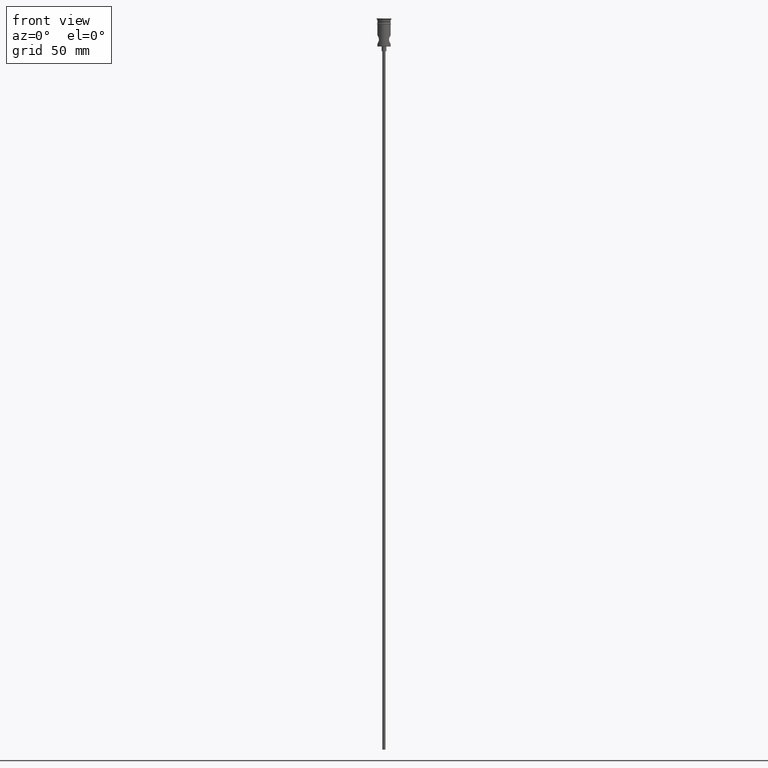
[diagram: clean part render]
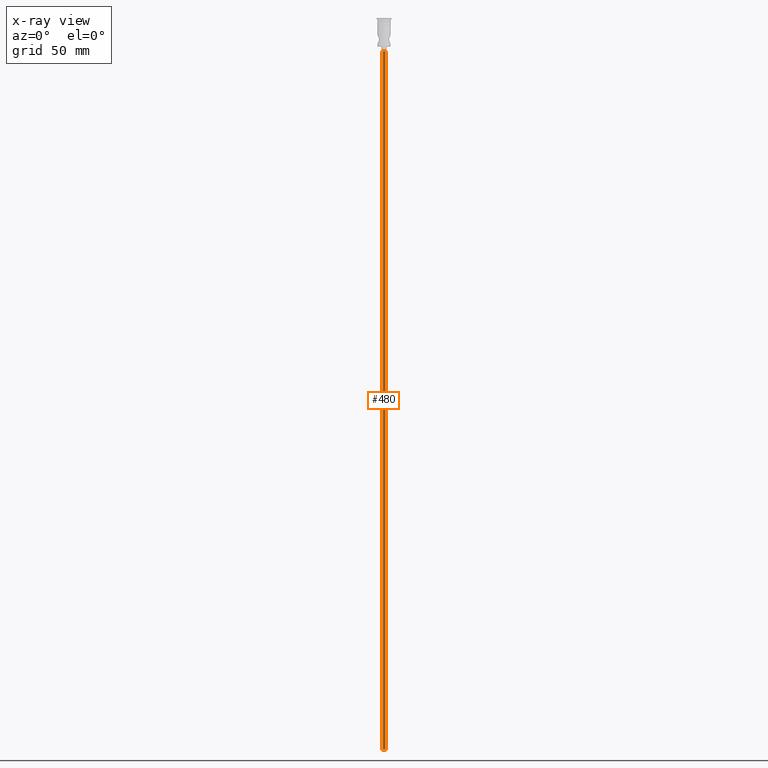
[diagram: x-ray — body ghosted, one internal face saturated and labeled with its STEP entity id]
A machine part, front view, then the same camera in x-ray: the body is ghosted and one INTERNAL B-rep face — a face not visible from any outside direction — is saturated and labeled: STEP entity #480.
In plain terms, the highlighted cylindrical surface (edge-blend (fillet) strip) has radius 1 mm, axis along (-0, -0, 1).
Its self-contained STEP definition (entity closure, byte-faithful):
#14 = CARTESIAN_POINT ( 'NONE',  ( -0.9999999999999997780, 1.224646799147352961E-16, -468.0000000000000000 ) ) ;
#22 = DIRECTION ( 'NONE',  ( -0.000000000000000000, -0.000000000000000000, 1.000000000000000000 ) ) ;
#40 = CARTESIAN_POINT ( 'NONE',  ( 0.000000000000000000, 0.000000000000000000, -468.0000000000000000 ) ) ;
#62 = VERTEX_POINT ( 'NONE', #701 ) ;
#82 = EDGE_CURVE ( 'NONE', #200, #380, #432, .T. ) ;
#122 = CARTESIAN_POINT ( 'NONE',  ( 0.000000000000000000, 0.000000000000000000, -468.0000000000000000 ) ) ;
#136 = CIRCLE ( 'NONE', #221, 0.9999999999999997780 ) ;
#147 = DIRECTION ( 'NONE',  ( 1.000000000000000000, 0.000000000000000000, 0.000000000000000000 ) ) ;
#200 = VERTEX_POINT ( 'NONE', #482 ) ;
#211 = ORIENTED_EDGE ( 'NONE', *, *, #1084, .T. ) ;
#221 = AXIS2_PLACEMENT_3D ( 'NONE', #230, #1031, #1116 ) ;
#230 = CARTESIAN_POINT ( 'NONE',  ( 0.000000000000000000, 0.000000000000000000, -20.99999999999999645 ) ) ;
#233 = CARTESIAN_POINT ( 'NONE',  ( 0.9999999999999997780, 0.000000000000000000, -468.0000000000000000 ) ) ;
#308 = ORIENTED_EDGE ( 'NONE', *, *, #82, .F. ) ;
#324 = LINE ( 'NONE', #1130, #610 ) ;
#380 = VERTEX_POINT ( 'NONE', #233 ) ;
#386 = AXIS2_PLACEMENT_3D ( 'NONE', #122, #22, #147 ) ;
#432 = CIRCLE ( 'NONE', #1000, 0.9999999999999997780 ) ;
#463 = DIRECTION ( 'NONE',  ( -0.000000000000000000, -0.000000000000000000, 1.000000000000000000 ) ) ;
#480 = ADVANCED_FACE ( 'NONE', ( #820 ), #1128, .T. ) ;
#482 = CARTESIAN_POINT ( 'NONE',  ( -0.9999999999999997780, 1.224646799147352961E-16, -468.0000000000000000 ) ) ;
#483 = DIRECTION ( 'NONE',  ( 0.000000000000000000, 0.000000000000000000, -1.000000000000000000 ) ) ;
#507 = ORIENTED_EDGE ( 'NONE', *, *, #1056, .F. ) ;
#593 = CARTESIAN_POINT ( 'NONE',  ( -0.9999999999999997780, 1.224646799147352961E-16, -20.99999999999999645 ) ) ;
#610 = VECTOR ( 'NONE', #674, 1000.000000000000000 ) ;
#655 = VERTEX_POINT ( 'NONE', #593 ) ;
#661 = EDGE_LOOP ( 'NONE', ( #308, #1051, #211, #507 ) ) ;
#674 = DIRECTION ( 'NONE',  ( -0.000000000000000000, -0.000000000000000000, 1.000000000000000000 ) ) ;
#686 = LINE ( 'NONE', #14, #1243 ) ;
#701 = CARTESIAN_POINT ( 'NONE',  ( 0.9999999999999997780, 0.000000000000000000, -20.99999999999999645 ) ) ;
#753 = EDGE_CURVE ( 'NONE', #200, #655, #686, .T. ) ;
#820 = FACE_OUTER_BOUND ( 'NONE', #661, .T. ) ;
#1000 = AXIS2_PLACEMENT_3D ( 'NONE', #40, #483, #1251 ) ;
#1031 = DIRECTION ( 'NONE',  ( 0.000000000000000000, 0.000000000000000000, -1.000000000000000000 ) ) ;
#1051 = ORIENTED_EDGE ( 'NONE', *, *, #753, .T. ) ;
#1056 = EDGE_CURVE ( 'NONE', #380, #62, #324, .T. ) ;
#1084 = EDGE_CURVE ( 'NONE', #655, #62, #136, .T. ) ;
#1116 = DIRECTION ( 'NONE',  ( -1.000000000000000000, 0.000000000000000000, 0.000000000000000000 ) ) ;
#1128 = CYLINDRICAL_SURFACE ( 'NONE', #386, 0.9999999999999997780 ) ;
#1130 = CARTESIAN_POINT ( 'NONE',  ( 0.9999999999999997780, 0.000000000000000000, -468.0000000000000000 ) ) ;
#1243 = VECTOR ( 'NONE', #463, 1000.000000000000000 ) ;
#1251 = DIRECTION ( 'NONE',  ( -1.000000000000000000, 0.000000000000000000, 0.000000000000000000 ) ) ;